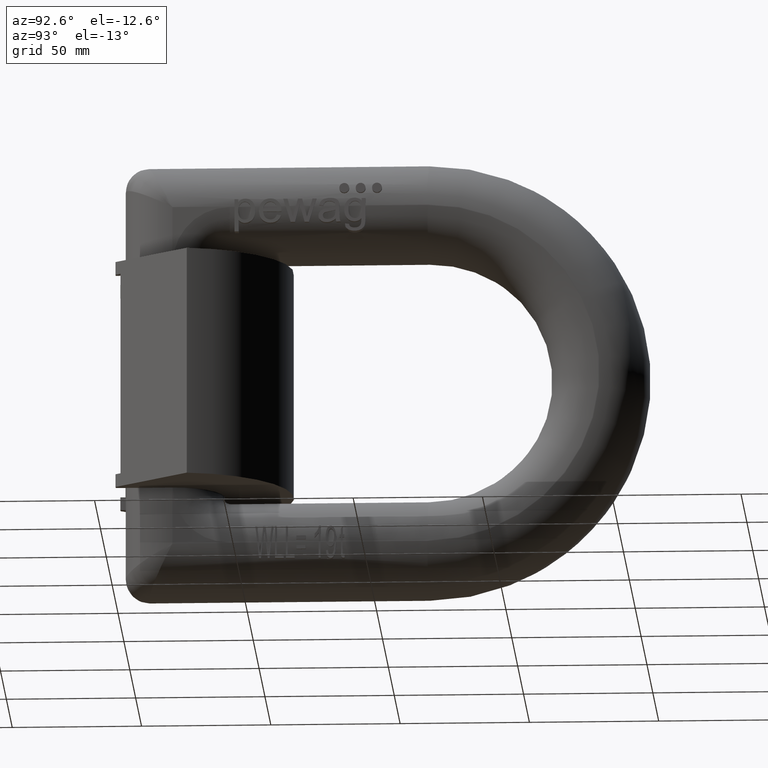
[diagram: clean part render]
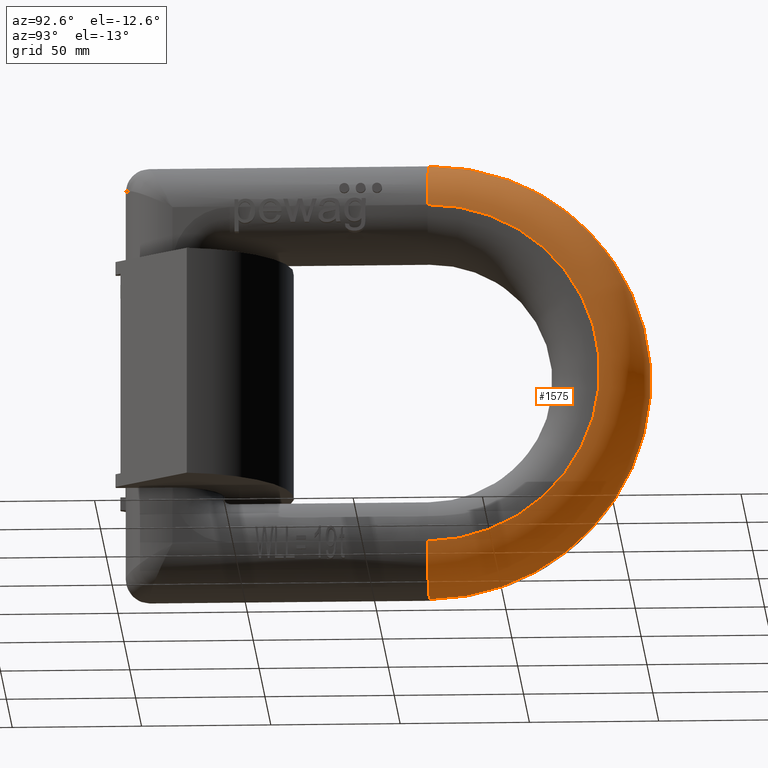
[diagram: same view with one face highlighted and labeled with its STEP entity id]
A machine part, auxiliary view. The second image highlights one B-rep face of the part: STEP entity #1575.
In plain terms, the highlighted toroidal blend (fillet) surface has major radius 66.6 mm and minor (blend) radius 18.9 mm.
Its self-contained STEP definition (entity closure, byte-faithful):
#183=TOROIDAL_SURFACE('',#9378,66.6,18.9);
#1575=ADVANCED_FACE('',(#2091),#183,.T.);
#2091=FACE_OUTER_BOUND('',#2573,.T.);
#2573=EDGE_LOOP('',(#4568,#4569,#4570,#4571));
#2784=CIRCLE('',#9047,85.5);
#2851=CIRCLE('',#9315,66.6);
#2853=CIRCLE('',#9324,18.9);
#2867=CIRCLE('',#9346,18.9);
#4568=ORIENTED_EDGE('',*,*,#7257,.T.);
#4569=ORIENTED_EDGE('',*,*,#7174,.F.);
#4570=ORIENTED_EDGE('',*,*,#7189,.F.);
#4571=ORIENTED_EDGE('',*,*,#6456,.F.);
#5560=VERTEX_POINT('',#11365);
#5562=VERTEX_POINT('',#11371);
#6055=VERTEX_POINT('',#15251);
#6056=VERTEX_POINT('',#15253);
#6456=EDGE_CURVE('',#5560,#5562,#2784,.T.);
#7174=EDGE_CURVE('',#6055,#6056,#2851,.T.);
#7189=EDGE_CURVE('',#5562,#6055,#2853,.T.);
#7257=EDGE_CURVE('',#5560,#6056,#2867,.T.);
#9047=AXIS2_PLACEMENT_3D('',#11370,#9639,#9640);
#9315=AXIS2_PLACEMENT_3D('',#15252,#10559,#10560);
#9324=AXIS2_PLACEMENT_3D('',#15286,#10584,#10585);
#9346=AXIS2_PLACEMENT_3D('',#15724,#10646,#10647);
#9378=AXIS2_PLACEMENT_3D('',#16396,#10731,#10732);
#9639=DIRECTION('',(-1.,0.,-2.34291072916505E-15));
#9640=DIRECTION('',(2.34292285255968E-15,0.,-1.));
#10559=DIRECTION('',(1.,0.,2.34291072916505E-15));
#10560=DIRECTION('',(2.34422091348217E-15,0.,-1.));
#10584=DIRECTION('',(0.,-1.,0.));
#10585=DIRECTION('',(-2.34265112269189E-15,0.,1.));
#10646=DIRECTION('',(0.,1.,0.));
#10647=DIRECTION('',(2.34265112269189E-15,0.,-1.));
#10731=DIRECTION('',(1.,0.,2.34291072916505E-15));
#10732=DIRECTION('',(2.34292285255968E-15,0.,-1.));
#11365=CARTESIAN_POINT('',(0.0999999999997991,120.5,85.5));
#11370=CARTESIAN_POINT('',(0.0999999999999994,120.5,2.34291072916503E-16));
#11371=CARTESIAN_POINT('',(0.1000000000002,120.5,-85.5));
#15251=CARTESIAN_POINT('',(19.0000000000002,120.5,-66.6));
#15252=CARTESIAN_POINT('',(19.,120.5,4.45153038541359E-14));
#15253=CARTESIAN_POINT('',(18.9999999999998,120.5,66.6000000000001));
#15286=CARTESIAN_POINT('',(0.100000000000155,120.5,-66.6));
#15724=CARTESIAN_POINT('',(0.0999999999998434,120.5,66.6));
#16396=CARTESIAN_POINT('',(0.0999999999999994,120.5,2.34291072916503E-16));